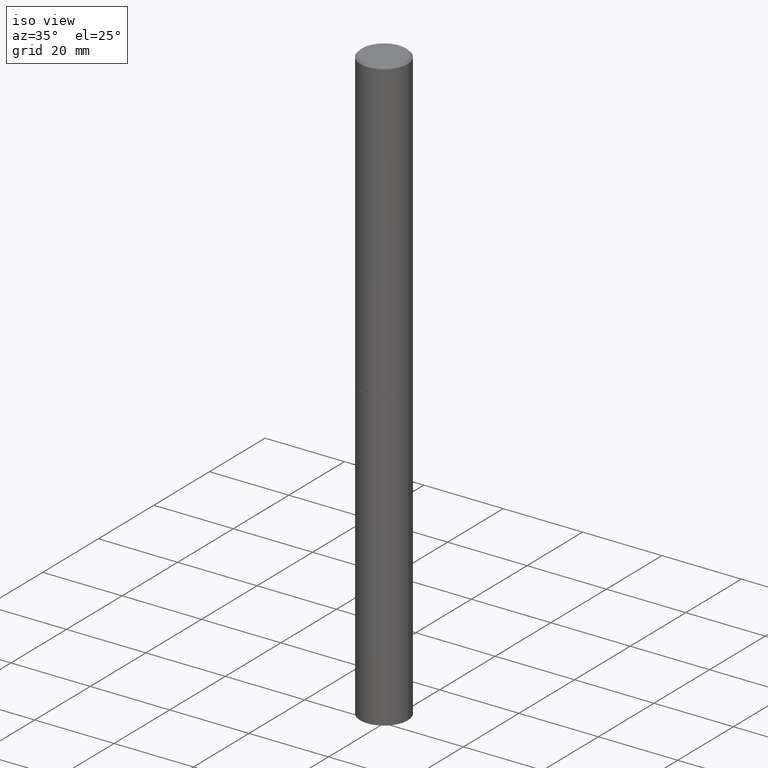
[diagram: clean part render]
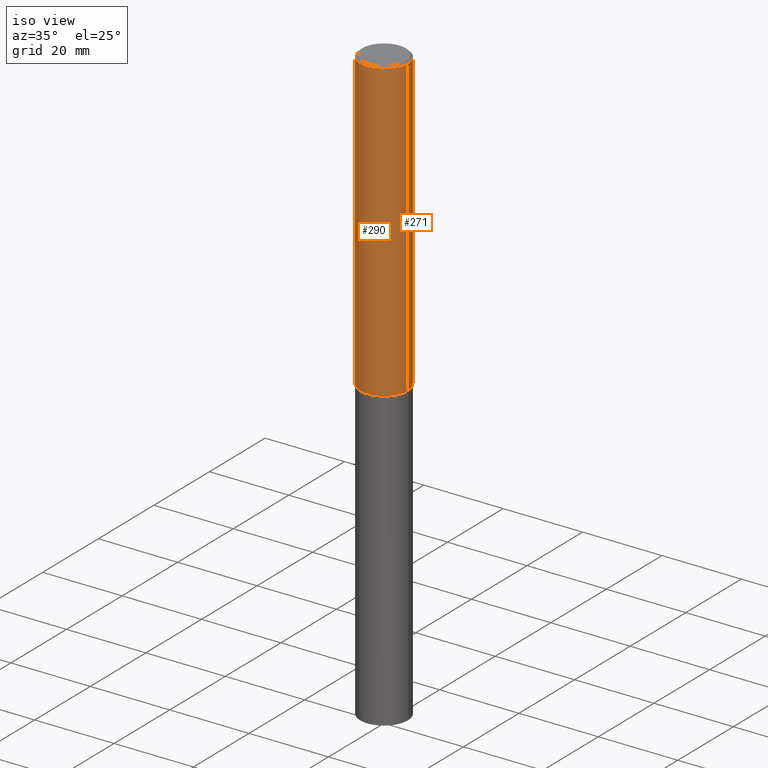
[diagram: same view with one multi-face feature highlighted, each face labeled with its STEP entity id]
A machine part, iso view. The highlighted faces form ONE feature: a constant-radius fillet chain: 2 tangent blend faces with common blend radius 5.9995 mm. The faces share edges in the B-rep.
Their STEP definitions:
[1] entity #290 (Cylinder):
#6 = DIRECTION ( 'NONE',  ( -2.445468806185136597E-29, 3.491481338843145583E-15, 1.000000000000000000 ) ) ;
#8 = CARTESIAN_POINT ( 'NONE',  ( 0.2361999999999997712, -1.690279253850497193E-15, -0.02000000000000007674 ) ) ;
#11 = ORIENTED_EDGE ( 'NONE', *, *, #85, .F. ) ;
#14 = DIRECTION ( 'NONE',  ( -2.445468806185136597E-29, 3.491481338843145583E-15, 1.000000000000000000 ) ) ;
#21 = VERTEX_POINT ( 'NONE', #363 ) ;
#32 = CARTESIAN_POINT ( 'NONE',  ( 4.890937612370292426E-31, -6.982962677686317493E-17, -0.02000000000000007674 ) ) ;
#85 = EDGE_CURVE ( 'NONE', #319, #123, #173, .T. ) ;
#95 = VECTOR ( 'NONE', #217, 39.37007874015748143 ) ;
#96 = DIRECTION ( 'NONE',  ( 1.000000000000000000, -6.982962677686266711E-15, 4.876176775795935793E-29 ) ) ;
#101 = LINE ( 'NONE', #331, #95 ) ;
#116 = EDGE_CURVE ( 'NONE', #21, #208, #268, .T. ) ;
#123 = VERTEX_POINT ( 'NONE', #8 ) ;
#146 = EDGE_LOOP ( 'NONE', ( #154, #261, #236, #11 ) ) ;
#154 = ORIENTED_EDGE ( 'NONE', *, *, #348, .F. ) ;
#155 = CARTESIAN_POINT ( 'NONE',  ( 0.000000000000000000, 0.000000000000000000, 0.000000000000000000 ) ) ;
#157 = AXIS2_PLACEMENT_3D ( 'NONE', #32, #6, #344 ) ;
#161 = EDGE_CURVE ( 'NONE', #208, #123, #259, .T. ) ;
#173 = CIRCLE ( 'NONE', #157, 0.2361999999999997712 ) ;
#196 = VECTOR ( 'NONE', #320, 39.37007874015748143 ) ;
#208 = VERTEX_POINT ( 'NONE', #241 ) ;
#217 = DIRECTION ( 'NONE',  ( -2.445468806185136877E-29, 3.491481338843145188E-15, 1.000000000000000000 ) ) ;
#236 = ORIENTED_EDGE ( 'NONE', *, *, #161, .T. ) ;
#241 = CARTESIAN_POINT ( 'NONE',  ( 0.2361999999999999933, -1.195518125233281011E-14, -2.951700000000000212 ) ) ;
#251 = AXIS2_PLACEMENT_3D ( 'NONE', #318, #366, #257 ) ;
#257 = DIRECTION ( 'NONE',  ( 1.000000000000000000, -6.982962677686265133E-15, 0.000000000000000000 ) ) ;
#259 = LINE ( 'NONE', #265, #196 ) ;
#261 = ORIENTED_EDGE ( 'NONE', *, *, #116, .T. ) ;
#265 = CARTESIAN_POINT ( 'NONE',  ( 0.2361999999999998545, -1.649375784469495145E-15, 1.151752954442999387E-29 ) ) ;
#268 = CIRCLE ( 'NONE', #251, 0.2361999999999999933 ) ;
#290 = ADVANCED_FACE ( 'NONE', ( #323 ), #299, .T. ) ;
#299 = CYLINDRICAL_SURFACE ( 'NONE', #317, 0.2361999999999998545 ) ;
#317 = AXIS2_PLACEMENT_3D ( 'NONE', #155, #14, #96 ) ;
#318 = CARTESIAN_POINT ( 'NONE',  ( 7.218290275216666916E-29, -1.030580546786331359E-14, -2.951700000000000212 ) ) ;
#319 = VERTEX_POINT ( 'NONE', #360 ) ;
#320 = DIRECTION ( 'NONE',  ( -2.445468806185136877E-29, 3.491481338843145188E-15, 1.000000000000000000 ) ) ;
#323 = FACE_OUTER_BOUND ( 'NONE', #146, .T. ) ;
#331 = CARTESIAN_POINT ( 'NONE',  ( -0.2361999999999998545, 1.678301941865355605E-15, -1.161852468318208056E-29 ) ) ;
#344 = DIRECTION ( 'NONE',  ( 1.000000000000000000, -6.982962677686266711E-15, 0.000000000000000000 ) ) ;
#348 = EDGE_CURVE ( 'NONE', #21, #319, #101, .T. ) ;
#360 = CARTESIAN_POINT ( 'NONE',  ( -0.2361999999999997712, 1.579546157692631452E-15, -0.02000000000000007674 ) ) ;
#363 = CARTESIAN_POINT ( 'NONE',  ( -0.2362000000000000210, -3.509515605454727710E-15, -2.951700000000000212 ) ) ;
#366 = DIRECTION ( 'NONE',  ( -2.445468806185136597E-29, 3.491481338843145583E-15, 1.000000000000000000 ) ) ;
[2] entity #271 (Cylinder):
#4 = ORIENTED_EDGE ( 'NONE', *, *, #161, .F. ) ;
#8 = CARTESIAN_POINT ( 'NONE',  ( 0.2361999999999997712, -1.690279253850497193E-15, -0.02000000000000007674 ) ) ;
#12 = CARTESIAN_POINT ( 'NONE',  ( 0.000000000000000000, 0.000000000000000000, 0.000000000000000000 ) ) ;
#17 = FACE_OUTER_BOUND ( 'NONE', #125, .T. ) ;
#21 = VERTEX_POINT ( 'NONE', #363 ) ;
#45 = CARTESIAN_POINT ( 'NONE',  ( 4.890937612370292426E-31, -6.982962677686317493E-17, -0.02000000000000007674 ) ) ;
#71 = CARTESIAN_POINT ( 'NONE',  ( 7.218290275216666916E-29, -1.030580546786331359E-14, -2.951700000000000212 ) ) ;
#80 = AXIS2_PLACEMENT_3D ( 'NONE', #71, #185, #300 ) ;
#95 = VECTOR ( 'NONE', #217, 39.37007874015748143 ) ;
#101 = LINE ( 'NONE', #331, #95 ) ;
#106 = AXIS2_PLACEMENT_3D ( 'NONE', #12, #321, #124 ) ;
#123 = VERTEX_POINT ( 'NONE', #8 ) ;
#124 = DIRECTION ( 'NONE',  ( 1.000000000000000000, -6.982962677686266711E-15, 4.876176775795935793E-29 ) ) ;
#125 = EDGE_LOOP ( 'NONE', ( #151, #238, #212, #4 ) ) ;
#151 = ORIENTED_EDGE ( 'NONE', *, *, #304, .T. ) ;
#160 = DIRECTION ( 'NONE',  ( 1.000000000000000000, -6.982962677686266711E-15, 0.000000000000000000 ) ) ;
#161 = EDGE_CURVE ( 'NONE', #208, #123, #259, .T. ) ;
#185 = DIRECTION ( 'NONE',  ( -2.445468806185136597E-29, 3.491481338843145583E-15, 1.000000000000000000 ) ) ;
#190 = AXIS2_PLACEMENT_3D ( 'NONE', #45, #332, #160 ) ;
#196 = VECTOR ( 'NONE', #320, 39.37007874015748143 ) ;
#208 = VERTEX_POINT ( 'NONE', #241 ) ;
#212 = ORIENTED_EDGE ( 'NONE', *, *, #362, .F. ) ;
#217 = DIRECTION ( 'NONE',  ( -2.445468806185136877E-29, 3.491481338843145188E-15, 1.000000000000000000 ) ) ;
#238 = ORIENTED_EDGE ( 'NONE', *, *, #348, .T. ) ;
#240 = CIRCLE ( 'NONE', #80, 0.2361999999999999933 ) ;
#241 = CARTESIAN_POINT ( 'NONE',  ( 0.2361999999999999933, -1.195518125233281011E-14, -2.951700000000000212 ) ) ;
#259 = LINE ( 'NONE', #265, #196 ) ;
#265 = CARTESIAN_POINT ( 'NONE',  ( 0.2361999999999998545, -1.649375784469495145E-15, 1.151752954442999387E-29 ) ) ;
#269 = CIRCLE ( 'NONE', #190, 0.2361999999999997712 ) ;
#271 = ADVANCED_FACE ( 'NONE', ( #17 ), #354, .T. ) ;
#300 = DIRECTION ( 'NONE',  ( 1.000000000000000000, -6.982962677686265133E-15, 0.000000000000000000 ) ) ;
#304 = EDGE_CURVE ( 'NONE', #208, #21, #240, .T. ) ;
#319 = VERTEX_POINT ( 'NONE', #360 ) ;
#320 = DIRECTION ( 'NONE',  ( -2.445468806185136877E-29, 3.491481338843145188E-15, 1.000000000000000000 ) ) ;
#321 = DIRECTION ( 'NONE',  ( -2.445468806185136597E-29, 3.491481338843145583E-15, 1.000000000000000000 ) ) ;
#331 = CARTESIAN_POINT ( 'NONE',  ( -0.2361999999999998545, 1.678301941865355605E-15, -1.161852468318208056E-29 ) ) ;
#332 = DIRECTION ( 'NONE',  ( -2.445468806185136597E-29, 3.491481338843145583E-15, 1.000000000000000000 ) ) ;
#348 = EDGE_CURVE ( 'NONE', #21, #319, #101, .T. ) ;
#354 = CYLINDRICAL_SURFACE ( 'NONE', #106, 0.2361999999999998545 ) ;
#360 = CARTESIAN_POINT ( 'NONE',  ( -0.2361999999999997712, 1.579546157692631452E-15, -0.02000000000000007674 ) ) ;
#362 = EDGE_CURVE ( 'NONE', #123, #319, #269, .T. ) ;
#363 = CARTESIAN_POINT ( 'NONE',  ( -0.2362000000000000210, -3.509515605454727710E-15, -2.951700000000000212 ) ) ;